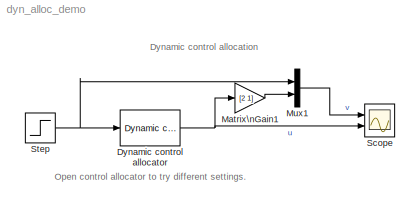
MODEL dyn_alloc_demo
KIND model
CONFIG AbsTol = auto
CONFIG FixedStep = auto
CONFIG MaxStep = auto
CONFIG MinStep = auto
CONFIG RelTol = 1e-3
CONFIG Solver = ode45
CONFIG SolverMode = Auto
CONFIG StartTime = 0.0
CONFIG StopTime = 10.0
BLOCK [Reference] Dynamic control allocator  REF=qcatlib/Dynamic control allocator  (lib defined in mdl_185632192637, slx_3440b88f227d, +1 more)
  B = [2 1]
  Ports = [1, 1]
  S = [.5 0]'
  SourceBlock = qcatlib/Dynamic control allocator
  SourceType = Dynamic control allocator
  T = .1
  W1 = diag([1 1])
  W2 = diag([8 0])
  Wv = 1
  plim = [-1 1;-1 1]
  rlim = [-1 1;-5 5]
BLOCK [Gain] Matrix\nGain1
  Gain = [2 1]
  Multiplication = Matrix(K*u)
BLOCK [Mux] Mux1
  DisplayOption = bar
  Inputs = 2
  Ports = [2, 1]
BLOCK [Scope] Scope
  DataFormat = StructureWithTime
  NumInputPorts = 2
  Ports = [2]
  TimeRange = 10
  YMax = 1.2~1
  YMin = 0~0
  ZoomMode = yonly
BLOCK [Step] Step
  SampleTime = 0
ANNOTATION (root): Dynamic control allocation
ANNOTATION (root): Open control allocator to try different settings.
NET Dynamic control allocator:1 -> Matrix\nGain1:1, Scope:2
LINE Matrix\nGain1:1 -> Mux1:2
LINE Mux1:1 -> Scope:1
NET Step:1 -> Dynamic control allocator:1, Mux1:1
note: NET lines group one-source signal fan-out (src -> all destinations, sorted); 1:1 wires keep LINE
